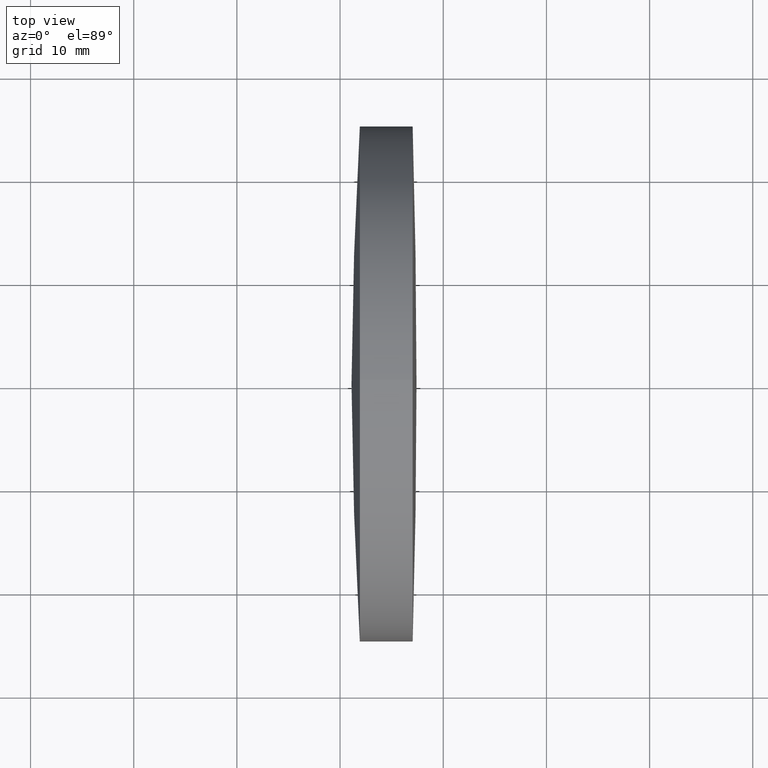
[diagram: clean part render]
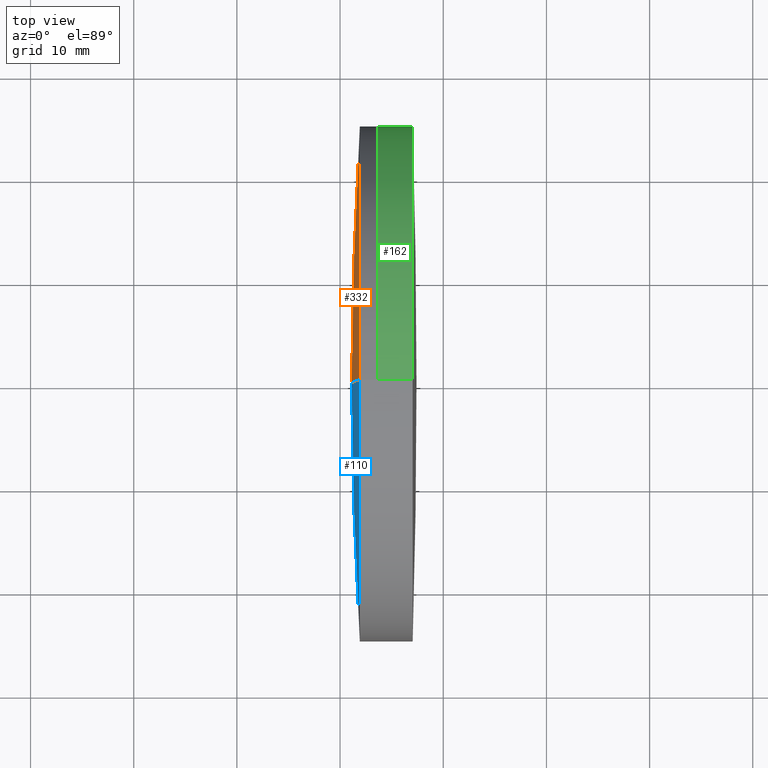
[diagram: same view with three faces highlighted in distinct colors, each labeled with its STEP entity id]
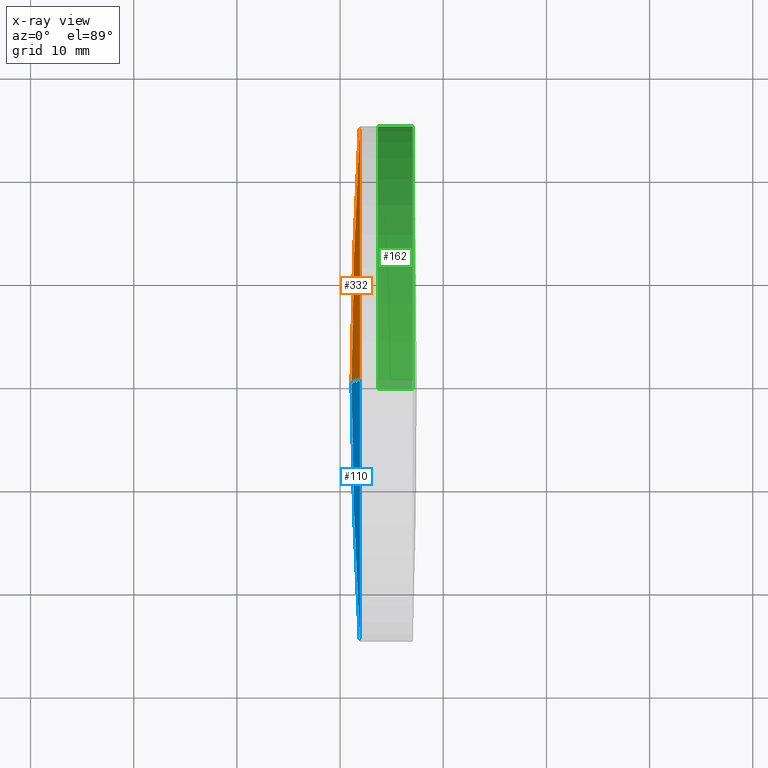
[diagram: x-ray of the same camera — body ghosted, the three highlighted faces saturated]
A machine part, top view with three faces highlighted in distinct colors.
The next image is the same camera in x-ray (body ghosted, the three faces saturated) — at least one of them is partly hidden behind the body in this view.
Their STEP definitions:

[orange] entity #332 — the highlighted spherical surface has radius 387.702 mm.
#5 = DIRECTION ( 'NONE',  ( 0.0000000000000000000, 1.000000000000000000, 0.0000000000000000000 ) ) ;
#11 = CARTESIAN_POINT ( 'NONE',  ( 291.9150182122907000, 3.061616997868380700E-015, -25.00000000000035900 ) ) ;
#12 = DIRECTION ( 'NONE',  ( 0.0000000000000000000, 0.0000000000000000000, 1.000000000000000000 ) ) ;
#21 = AXIS2_PLACEMENT_3D ( 'NONE', #281, #174, #295 ) ;
#32 = ORIENTED_EDGE ( 'NONE', *, *, #343, .T. ) ;
#77 = FACE_OUTER_BOUND ( 'NONE', #340, .T. ) ;
#86 = CARTESIAN_POINT ( 'NONE',  ( 678.8101471606918300, 0.0000000000000000000, -3.757270790707711000E-013 ) ) ;
#107 = CARTESIAN_POINT ( 'NONE',  ( 678.8101471606918300, 0.0000000000000000000, -3.757270790707711000E-013 ) ) ;
#112 = VERTEX_POINT ( 'NONE', #234 ) ;
#118 = CARTESIAN_POINT ( 'NONE',  ( 291.9150182122907000, 0.0000000000000000000, 0.0000000000000000000 ) ) ;
#164 = CARTESIAN_POINT ( 'NONE',  ( 291.9150182122907000, 0.0000000000000000000, 24.99999999999998600 ) ) ;
#169 = EDGE_CURVE ( 'NONE', #230, #112, #252, .T. ) ;
#174 = DIRECTION ( 'NONE',  ( -0.0000000000000000000, 1.000000000000000000, 1.224646799147353200E-016 ) ) ;
#185 = DIRECTION ( 'NONE',  ( 0.0000000000000000000, 0.0000000000000000000, -1.000000000000000000 ) ) ;
#189 = ORIENTED_EDGE ( 'NONE', *, *, #169, .F. ) ;
#199 = EDGE_CURVE ( 'NONE', #280, #112, #337, .T. ) ;
#202 = SPHERICAL_SURFACE ( 'NONE', #229, 387.7020000000000000 ) ;
#205 = DIRECTION ( 'NONE',  ( 0.0000000000000000000, -1.000000000000000000, 0.0000000000000000000 ) ) ;
#213 = AXIS2_PLACEMENT_3D ( 'NONE', #118, #338, #342 ) ;
#222 = CIRCLE ( 'NONE', #213, 25.00000000000005300 ) ;
#229 = AXIS2_PLACEMENT_3D ( 'NONE', #86, #5, #12 ) ;
#230 = VERTEX_POINT ( 'NONE', #164 ) ;
#234 = CARTESIAN_POINT ( 'NONE',  ( 291.1081471606918900, 0.0000000000000000000, -3.519871784046197500E-013 ) ) ;
#252 = CIRCLE ( 'NONE', #278, 387.7020000000000000 ) ;
#278 = AXIS2_PLACEMENT_3D ( 'NONE', #107, #205, #185 ) ;
#280 = VERTEX_POINT ( 'NONE', #11 ) ;
#281 = CARTESIAN_POINT ( 'NONE',  ( 678.8101471606918300, 0.0000000000000000000, -3.757270790707711000E-013 ) ) ;
#285 = ORIENTED_EDGE ( 'NONE', *, *, #199, .T. ) ;
#295 = DIRECTION ( 'NONE',  ( 0.0000000000000000000, -1.224646799147353200E-016, 1.000000000000000000 ) ) ;
#332 = ADVANCED_FACE ( 'NONE', ( #77 ), #202, .T. ) ;
#337 = CIRCLE ( 'NONE', #21, 387.7020000000000000 ) ;
#338 = DIRECTION ( 'NONE',  ( -1.000000000000000000, -0.0000000000000000000, -0.0000000000000000000 ) ) ;
#340 = EDGE_LOOP ( 'NONE', ( #32, #285, #189 ) ) ;
#342 = DIRECTION ( 'NONE',  ( 0.0000000000000000000, 0.0000000000000000000, 1.000000000000000000 ) ) ;
#343 = EDGE_CURVE ( 'NONE', #230, #280, #222, .T. ) ;

[blue] entity #110 — the highlighted spherical surface has radius 387.702 mm.
#10 = ORIENTED_EDGE ( 'NONE', *, *, #87, .T. ) ;
#11 = CARTESIAN_POINT ( 'NONE',  ( 291.9150182122907000, 3.061616997868380700E-015, -25.00000000000035900 ) ) ;
#21 = AXIS2_PLACEMENT_3D ( 'NONE', #281, #174, #295 ) ;
#26 = SPHERICAL_SURFACE ( 'NONE', #210, 387.7020000000000000 ) ;
#84 = ORIENTED_EDGE ( 'NONE', *, *, #169, .T. ) ;
#87 = EDGE_CURVE ( 'NONE', #280, #230, #324, .T. ) ;
#106 = DIRECTION ( 'NONE',  ( 0.0000000000000000000, 1.000000000000000000, 0.0000000000000000000 ) ) ;
#107 = CARTESIAN_POINT ( 'NONE',  ( 678.8101471606918300, 0.0000000000000000000, -3.757270790707711000E-013 ) ) ;
#110 = ADVANCED_FACE ( 'NONE', ( #284 ), #26, .T. ) ;
#112 = VERTEX_POINT ( 'NONE', #234 ) ;
#113 = CARTESIAN_POINT ( 'NONE',  ( 291.9150182122907000, 0.0000000000000000000, 0.0000000000000000000 ) ) ;
#129 = DIRECTION ( 'NONE',  ( 0.0000000000000000000, 0.0000000000000000000, 1.000000000000000000 ) ) ;
#164 = CARTESIAN_POINT ( 'NONE',  ( 291.9150182122907000, 0.0000000000000000000, 24.99999999999998600 ) ) ;
#169 = EDGE_CURVE ( 'NONE', #230, #112, #252, .T. ) ;
#174 = DIRECTION ( 'NONE',  ( -0.0000000000000000000, 1.000000000000000000, 1.224646799147353200E-016 ) ) ;
#185 = DIRECTION ( 'NONE',  ( 0.0000000000000000000, 0.0000000000000000000, -1.000000000000000000 ) ) ;
#199 = EDGE_CURVE ( 'NONE', #280, #112, #337, .T. ) ;
#205 = DIRECTION ( 'NONE',  ( 0.0000000000000000000, -1.000000000000000000, 0.0000000000000000000 ) ) ;
#210 = AXIS2_PLACEMENT_3D ( 'NONE', #286, #106, #129 ) ;
#225 = AXIS2_PLACEMENT_3D ( 'NONE', #113, #291, #259 ) ;
#230 = VERTEX_POINT ( 'NONE', #164 ) ;
#234 = CARTESIAN_POINT ( 'NONE',  ( 291.1081471606918900, 0.0000000000000000000, -3.519871784046197500E-013 ) ) ;
#248 = EDGE_LOOP ( 'NONE', ( #323, #10, #84 ) ) ;
#252 = CIRCLE ( 'NONE', #278, 387.7020000000000000 ) ;
#259 = DIRECTION ( 'NONE',  ( 0.0000000000000000000, 0.0000000000000000000, 1.000000000000000000 ) ) ;
#278 = AXIS2_PLACEMENT_3D ( 'NONE', #107, #205, #185 ) ;
#280 = VERTEX_POINT ( 'NONE', #11 ) ;
#281 = CARTESIAN_POINT ( 'NONE',  ( 678.8101471606918300, 0.0000000000000000000, -3.757270790707711000E-013 ) ) ;
#284 = FACE_OUTER_BOUND ( 'NONE', #248, .T. ) ;
#286 = CARTESIAN_POINT ( 'NONE',  ( 678.8101471606918300, 0.0000000000000000000, -3.757270790707711000E-013 ) ) ;
#291 = DIRECTION ( 'NONE',  ( -1.000000000000000000, -0.0000000000000000000, -0.0000000000000000000 ) ) ;
#295 = DIRECTION ( 'NONE',  ( 0.0000000000000000000, -1.224646799147353200E-016, 1.000000000000000000 ) ) ;
#323 = ORIENTED_EDGE ( 'NONE', *, *, #199, .F. ) ;
#324 = CIRCLE ( 'NONE', #225, 25.00000000000005300 ) ;
#337 = CIRCLE ( 'NONE', #21, 387.7020000000000000 ) ;

[green] entity #162 — the highlighted cylindrical surface (partial cylindrical patch) has radius 25 mm, axis along (-1, -0, -0).
#4 = AXIS2_PLACEMENT_3D ( 'NONE', #80, #31, #322 ) ;
#13 = LINE ( 'NONE', #255, #82 ) ;
#31 = DIRECTION ( 'NONE',  ( -1.000000000000000000, -0.0000000000000000000, -0.0000000000000000000 ) ) ;
#36 = CIRCLE ( 'NONE', #4, 24.99999999999984400 ) ;
#43 = CIRCLE ( 'NONE', #172, 24.99999999999932500 ) ;
#69 = DIRECTION ( 'NONE',  ( -1.000000000000000000, -0.0000000000000000000, -0.0000000000000000000 ) ) ;
#76 = FACE_OUTER_BOUND ( 'NONE', #242, .T. ) ;
#80 = CARTESIAN_POINT ( 'NONE',  ( 293.6613078278429600, 0.0000000000000000000, 0.0000000000000000000 ) ) ;
#82 = VECTOR ( 'NONE', #150, 1000.000000000000000 ) ;
#88 = CARTESIAN_POINT ( 'NONE',  ( 293.6613078278429600, 3.061616997868377100E-015, -24.99999999999962700 ) ) ;
#92 = VERTEX_POINT ( 'NONE', #245 ) ;
#108 = VERTEX_POINT ( 'NONE', #305 ) ;
#124 = CARTESIAN_POINT ( 'NONE',  ( -0.5519199926577972300, 0.0000000000000000000, 0.0000000000000000000 ) ) ;
#131 = DIRECTION ( 'NONE',  ( 0.0000000000000000000, 0.0000000000000000000, 1.000000000000000000 ) ) ;
#133 = ORIENTED_EDGE ( 'NONE', *, *, #144, .T. ) ;
#142 = VERTEX_POINT ( 'NONE', #257 ) ;
#144 = EDGE_CURVE ( 'NONE', #108, #92, #43, .T. ) ;
#149 = ORIENTED_EDGE ( 'NONE', *, *, #192, .T. ) ;
#150 = DIRECTION ( 'NONE',  ( -1.000000000000000000, -0.0000000000000000000, -0.0000000000000000000 ) ) ;
#155 = EDGE_CURVE ( 'NONE', #108, #142, #13, .T. ) ;
#156 = CARTESIAN_POINT ( 'NONE',  ( -0.5519199926577972300, 3.061616997868332200E-015, -24.99999999999958400 ) ) ;
#162 = ADVANCED_FACE ( 'NONE', ( #76 ), #335, .T. ) ;
#172 = AXIS2_PLACEMENT_3D ( 'NONE', #294, #296, #131 ) ;
#192 = EDGE_CURVE ( 'NONE', #92, #251, #208, .T. ) ;
#208 = LINE ( 'NONE', #156, #308 ) ;
#224 = EDGE_CURVE ( 'NONE', #142, #251, #36, .T. ) ;
#241 = DIRECTION ( 'NONE',  ( -1.000000000000000000, -0.0000000000000000000, -0.0000000000000000000 ) ) ;
#242 = EDGE_LOOP ( 'NONE', ( #133, #149, #270, #320 ) ) ;
#245 = CARTESIAN_POINT ( 'NONE',  ( 297.0363495728295200, 3.061616997868316400E-015, -24.99999999999932500 ) ) ;
#251 = VERTEX_POINT ( 'NONE', #88 ) ;
#255 = CARTESIAN_POINT ( 'NONE',  ( -0.5519199926577972300, 0.0000000000000000000, 24.99999999999958400 ) ) ;
#257 = CARTESIAN_POINT ( 'NONE',  ( 293.6613078278429600, 0.0000000000000000000, 24.99999999999995400 ) ) ;
#270 = ORIENTED_EDGE ( 'NONE', *, *, #224, .F. ) ;
#279 = AXIS2_PLACEMENT_3D ( 'NONE', #124, #241, #326 ) ;
#294 = CARTESIAN_POINT ( 'NONE',  ( 297.0363495728295200, 0.0000000000000000000, 0.0000000000000000000 ) ) ;
#296 = DIRECTION ( 'NONE',  ( -1.000000000000000000, -0.0000000000000000000, -0.0000000000000000000 ) ) ;
#305 = CARTESIAN_POINT ( 'NONE',  ( 297.0363495728295200, 0.0000000000000000000, 24.99999999999932500 ) ) ;
#308 = VECTOR ( 'NONE', #69, 1000.000000000000000 ) ;
#320 = ORIENTED_EDGE ( 'NONE', *, *, #155, .F. ) ;
#322 = DIRECTION ( 'NONE',  ( 0.0000000000000000000, 0.0000000000000000000, 1.000000000000000000 ) ) ;
#326 = DIRECTION ( 'NONE',  ( 0.0000000000000000000, 0.0000000000000000000, 1.000000000000000000 ) ) ;
#335 = CYLINDRICAL_SURFACE ( 'NONE', #279, 24.99999999999958400 ) ;